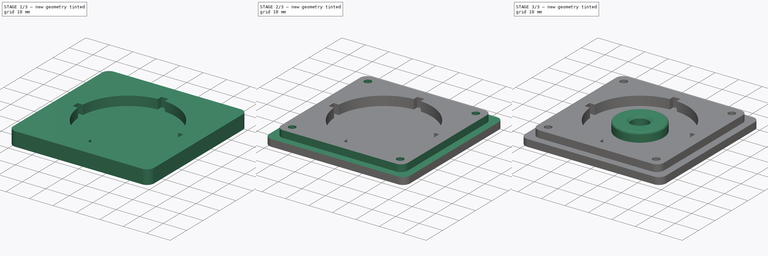
[diagram: build sequence overview — one tinted view per stage of 3, left to right]
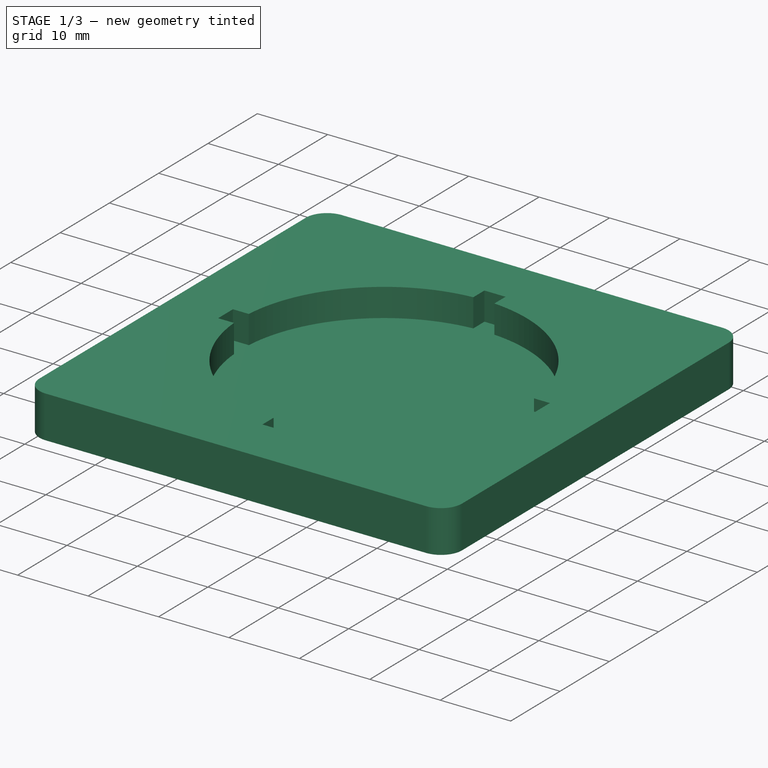
[diagram: stage 1 of 3 — iso view after this stage's code; geometry added in this stage tinted green]
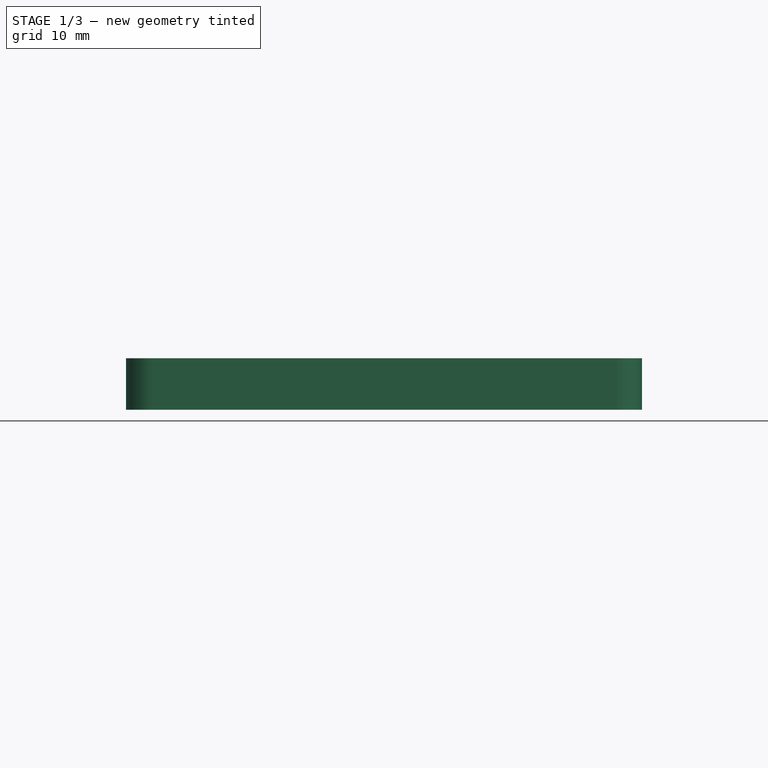
[diagram: stage 1 of 3 — front view after this stage's code; geometry added in this stage tinted green]
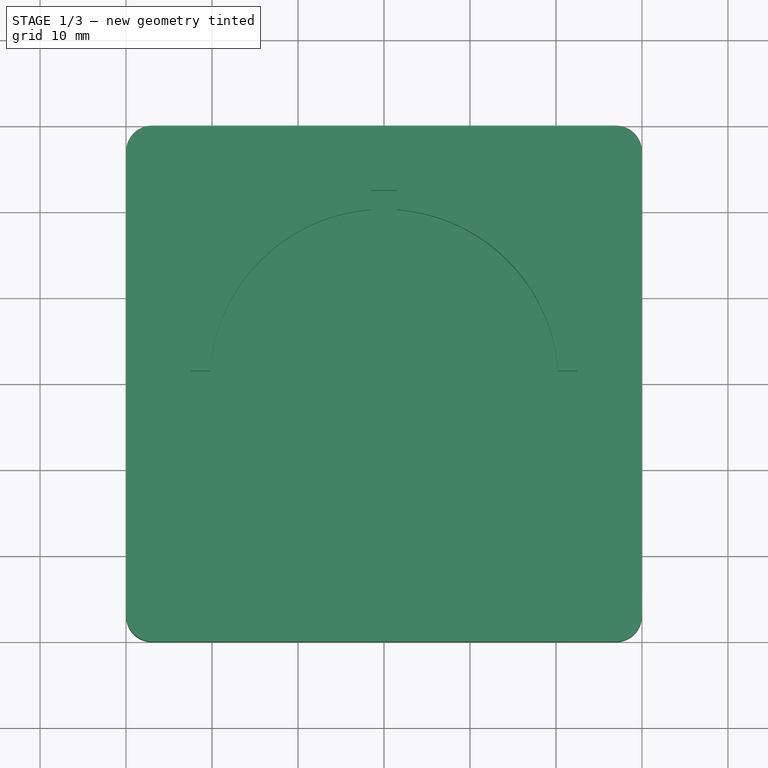
[diagram: stage 1 of 3 — top view after this stage's code; geometry added in this stage tinted green]
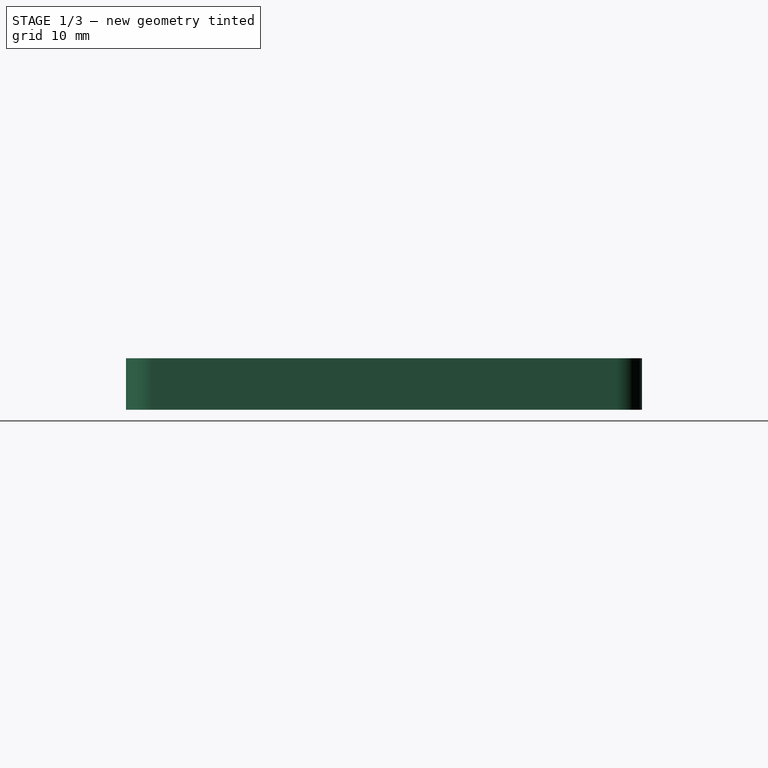
[diagram: stage 1 of 3 — right view after this stage's code; geometry added in this stage tinted green]
FCSTD DOCUMENT  (FreeCAD 1.0R39109 (Git))
Label: feet base
License: All rights reserved
objects: Sketcher::SketchObject×6, PartDesign::Pocket×4, PartDesign::Pad×2, PartDesign::Fillet×1, PartDesign::Chamfer×1, PartDesign::Body×1
note: 37 computed .brp shape members not serialized (recipe doc carries the construction recipe); baked Part::Feature solids carry a one-line shape summary decoded from their .brp

FEATURE [Sketcher::SketchObject] Sketch
  ArcFitTolerance = 1e-06
  AttachmentSupport = -> [XY_Plane]
  FullyConstrained = true
  MakeInternals = false
  MapMode = 5
  sketch-geometry (10):
    g0: LineSegment StartX=-30 StartY=27 StartZ=0 EndX=-30 EndY=-27 EndZ=0
    g1: LineSegment StartX=-27 StartY=-30 StartZ=0 EndX=27 EndY=-30 EndZ=0
    g2: LineSegment StartX=30 StartY=-27 StartZ=0 EndX=30 EndY=27 EndZ=0
    g3: LineSegment StartX=27 StartY=30 StartZ=0 EndX=-27 EndY=30 EndZ=0
    g4: ArcOfCircle CenterX=-27 CenterY=27 CenterZ=0 NormalX=0 NormalY=0 NormalZ=1 AngleXU=0 Radius=3 StartAngle=1.5708 EndAngle=3.14159
    g5: ArcOfCircle CenterX=-27 CenterY=-27 CenterZ=0 NormalX=0 NormalY=0 NormalZ=1 AngleXU=0 Radius=3 StartAngle=3.14159 EndAngle=4.71239
    g6: ArcOfCircle CenterX=27 CenterY=-27 CenterZ=0 NormalX=0 NormalY=0 NormalZ=1 AngleXU=0 Radius=3 StartAngle=4.71239 EndAngle=6.28319
    g7: ArcOfCircle CenterX=27 CenterY=27 CenterZ=0 NormalX=0 NormalY=0 NormalZ=1 AngleXU=0 Radius=3 StartAngle=3e-16 EndAngle=1.5708
    g8: GeomPoint [constr] X=-30 Y=30 Z=0
    g9: GeomPoint [constr] X=30 Y=-30 Z=0
  constraints (22):
    c: Tangent(g0,g4) = -1.5708
    c: Tangent(g0,g5) = -1.5708
    c: Tangent(g1,g5) = -1.5708
    c: Tangent(g1,g6) = -1.5708
    c: Tangent(g2,g6) = -1.5708
    c: Tangent(g2,g7) = -1.5708
    c: Tangent(g3,g7) = -1.5708
    c: Tangent(g3,g4) = -1.5708
    c: Vertical(g0)
    c: Vertical(g2)
    c: Horizontal(g1)
    c: Horizontal(g3)
    c: Equal(g5,g6)
    c: PointOnObject(g8,g0)
    c: PointOnObject(g8,g3)
    c: PointOnObject(g9,g1)
    c: PointOnObject(g9,g2)
    c: Distance(g0,g2) = 60
    c: Distance(g1,g3) = 60
    c: Radius(g5) = 3
    c: Symmetric(g4,g7,g-2)
    c: Symmetric(g5,g4,g-1)
FEATURE [PartDesign::Pad] Pad
  Direction = (0,0,1)
  Length = 6
  Length2 = 10
  Profile = -> Sketch
  ReferenceAxis = -> Sketch [N_Axis]
  Refine = true
  Suppressed = false
  Type = 0
FEATURE [Sketcher::SketchObject] Sketch001
  ArcFitTolerance = 1e-06
  AttachmentSupport = -> [Pad]
  FullyConstrained = true
  MakeInternals = false
  MapMode = 5
  Placement = pos=(0,0,6) rot=(0,0,1;0rad)
  sketch-geometry (1):
    g0: Circle CenterX=0 CenterY=0 CenterZ=0 NormalX=0 NormalY=0 NormalZ=1 AngleXU=0 Radius=20.3
  constraints (2):
    c: Coincident(g0,g-1)
    c: Radius(g0) = 20.3
FEATURE [PartDesign::Pocket] Pocket
  BaseFeature = -> Pad
  Direction = (0,0,-1)
  Length = 4
  Length2 = 5
  Profile = -> Sketch001
  ReferenceAxis = -> Sketch001 [N_Axis]
  Refine = true
  Suppressed = false
  Type = 0
FEATURE [Sketcher::SketchObject] Sketch002
  ArcFitTolerance = 1e-06
  AttachmentSupport = -> [Pocket]
  FullyConstrained = true
  MakeInternals = false
  MapMode = 5
  Placement = pos=(0,0,6) rot=(0,0,1;0rad)
  sketch-geometry (24):
    g0: LineSegment [constr] StartX=-22.5 StartY=22.5 StartZ=0 EndX=-22.5 EndY=1.5 EndZ=0
    g1: LineSegment StartX=-22.5 StartY=1.5 StartZ=0 EndX=-1.5 EndY=1.5 EndZ=0
    g2: LineSegment StartX=-1.5 StartY=1.5 StartZ=0 EndX=-1.5 EndY=22.5 EndZ=0
    g3: LineSegment [constr] StartX=-1.5 StartY=22.5 StartZ=0 EndX=-22.5 EndY=22.5 EndZ=0
    g4: LineSegment StartX=1.5 StartY=22.5 StartZ=0 EndX=1.5 EndY=1.5 EndZ=0
    g5: LineSegment StartX=1.5 StartY=1.5 StartZ=0 EndX=22.5 EndY=1.5 EndZ=0
    g6: LineSegment [constr] StartX=22.5 StartY=1.5 StartZ=0 EndX=22.5 EndY=22.5 EndZ=0
    g7: LineSegment [constr] StartX=22.5 StartY=22.5 StartZ=0 EndX=1.5 EndY=22.5 EndZ=0
    g8: LineSegment [constr] StartX=-22.5 StartY=-1.5 StartZ=0 EndX=-22.5 EndY=-22.5 EndZ=0
    g9: LineSegment [constr] StartX=-22.5 StartY=-22.5 StartZ=0 EndX=-1.5 EndY=-22.5 EndZ=0
    g10: LineSegment StartX=-1.5 StartY=-22.5 StartZ=0 EndX=-1.5 EndY=-1.5 EndZ=0
    g11: LineSegment StartX=-1.5 StartY=-1.5 StartZ=0 EndX=-22.5 EndY=-1.5 EndZ=0
    g12: LineSegment StartX=1.5 StartY=-1.5 StartZ=0 EndX=1.5 EndY=-22.5 EndZ=0
    g13: LineSegment [constr] StartX=1.5 StartY=-22.5 StartZ=0 EndX=22.5 EndY=-22.5 EndZ=0
    g14: LineSegment [constr] StartX=22.5 StartY=-22.5 StartZ=0 EndX=22.5 EndY=-1.5 EndZ=0
    g15: LineSegment StartX=22.5 StartY=-1.5 StartZ=0 EndX=1.5 EndY=-1.5 EndZ=0
    g16: LineSegment [constr] StartX=-1.5 StartY=1.5 StartZ=0 EndX=-1.5 EndY=-1.5 EndZ=0
    g17: LineSegment [constr] StartX=-1.5 StartY=-1.5 StartZ=0 EndX=1.5 EndY=-1.5 EndZ=0
    g18: LineSegment [constr] StartX=1.5 StartY=-1.5 StartZ=0 EndX=1.5 EndY=1.5 EndZ=0
    g19: LineSegment [constr] StartX=1.5 StartY=1.5 StartZ=0 EndX=-1.5 EndY=1.5 EndZ=0
    g20: LineSegment StartX=-22.5 StartY=1.5 StartZ=0 EndX=-22.5 EndY=-1.5 EndZ=0
    g21: LineSegment StartX=-1.5 StartY=22.5 StartZ=0 EndX=1.5 EndY=22.5 EndZ=0
    g22: LineSegment StartX=22.5 StartY=1.5 StartZ=0 EndX=22.5 EndY=-1.5 EndZ=0
    g23: LineSegment StartX=-1.5 StartY=-22.5 StartZ=0 EndX=1.5 EndY=-22.5 EndZ=0
  constraints (60):
    c: Coincident(g0,g1)
    c: Coincident(g1,g2)
    c: Coincident(g2,g3)
    c: Coincident(g3,g0)
    c: Vertical(g0)
    c: Vertical(g2)
    c: Horizontal(g1)
    c: Horizontal(g3)
    c: Coincident(g4,g5)
    c: Coincident(g5,g6)
    c: Coincident(g6,g7)
    c: Coincident(g7,g4)
    c: Vertical(g4)
    c: Vertical(g6)
    c: Horizontal(g5)
    c: Horizontal(g7)
    c: Coincident(g8,g9)
    c: Coincident(g9,g10)
    c: Coincident(g10,g11)
    c: Coincident(g11,g8)
    c: Vertical(g8)
    c: Vertical(g10)
    c: Horizontal(g9)
    c: Horizontal(g11)
    c: Coincident(g12,g13)
    c: Coincident(g13,g14)
    c: Coincident(g14,g15)
    c: Coincident(g15,g12)
    c: Vertical(g12)
    c: Vertical(g14)
    c: Horizontal(g13)
    c: Horizontal(g15)
    c: Coincident(g16,g17)
    c: Coincident(g17,g18)
    c: Coincident(g18,g19)
    c: Coincident(g19,g16)
    c: Vertical(g18)
    c: Horizontal(g19)
    c: Coincident(g1,g16)
    c: Coincident(g4,g18)
    c: Coincident(g10,g16)
    c: Coincident(g12,g17)
    c: Coincident(g20,g0)
    c: Coincident(g21,g2)
    c: Coincident(g21,g4)
    c: Coincident(g22,g5)
    c: Coincident(g22,g14)
    c: Vertical(g22)
    c: Coincident(g23,g9)
    c: Coincident(g23,g12)
    c: Horizontal(g23)
    c: Coincident(g8,g20)
    c: Symmetric(g0,g8,g-1)
    c: Symmetric(g0,g6,g-2)
    c: Symmetric(g1,g10,g-1)
    c: Symmetric(g10,g12,g-2)
    c: Equal(g20,g23)
    c: DistanceX(g8,g13) = 45
    c: Equal(g9,g8)
    c: DistanceY(g22,g22) = 3
FEATURE [PartDesign::Pocket] Pocket001
  BaseFeature = -> Pocket
  Direction = (0,0,-1)
  Length = 4
  Length2 = 5
  Profile = -> Sketch002
  ReferenceAxis = -> Sketch002 [N_Axis]
  Refine = true
  Suppressed = false
  Type = 0
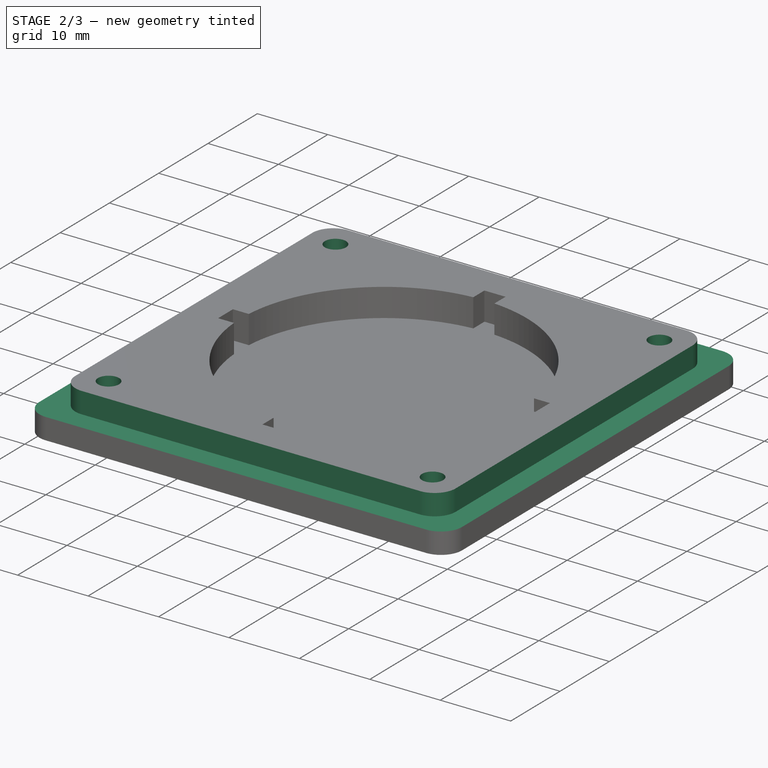
[diagram: stage 2 of 3 — iso view after this stage's code; geometry added in this stage tinted green]
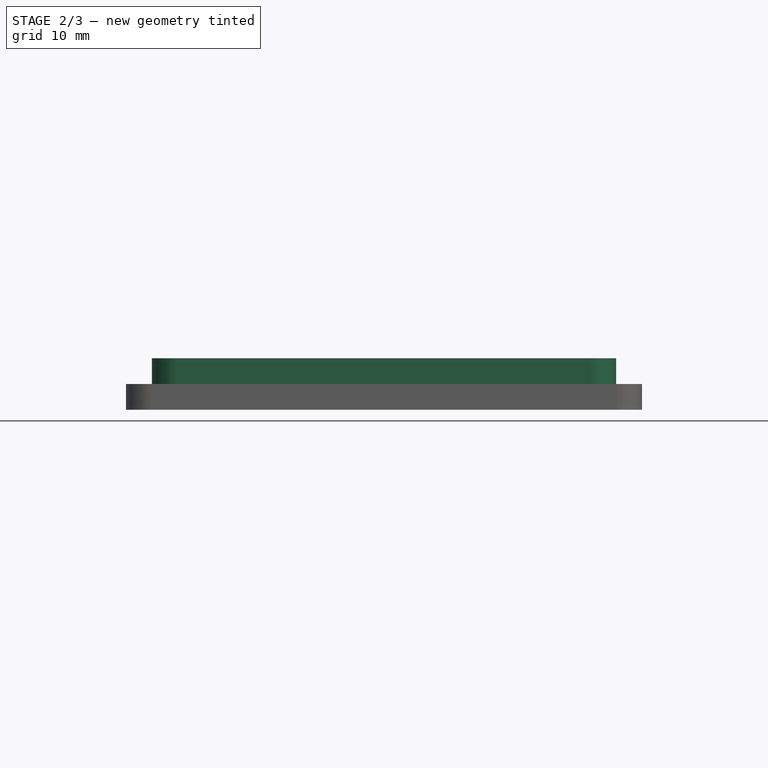
[diagram: stage 2 of 3 — front view after this stage's code; geometry added in this stage tinted green]
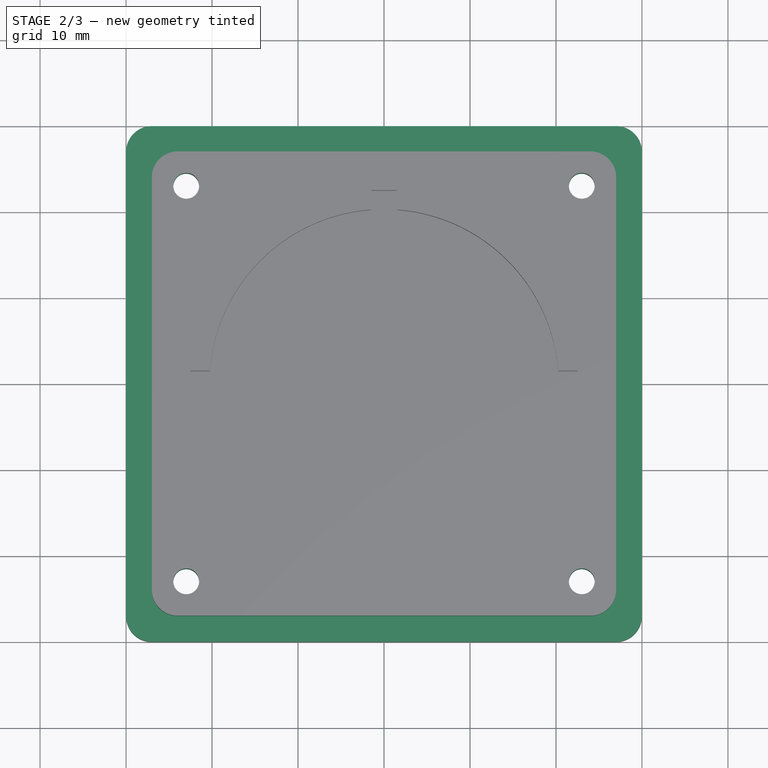
[diagram: stage 2 of 3 — top view after this stage's code; geometry added in this stage tinted green]
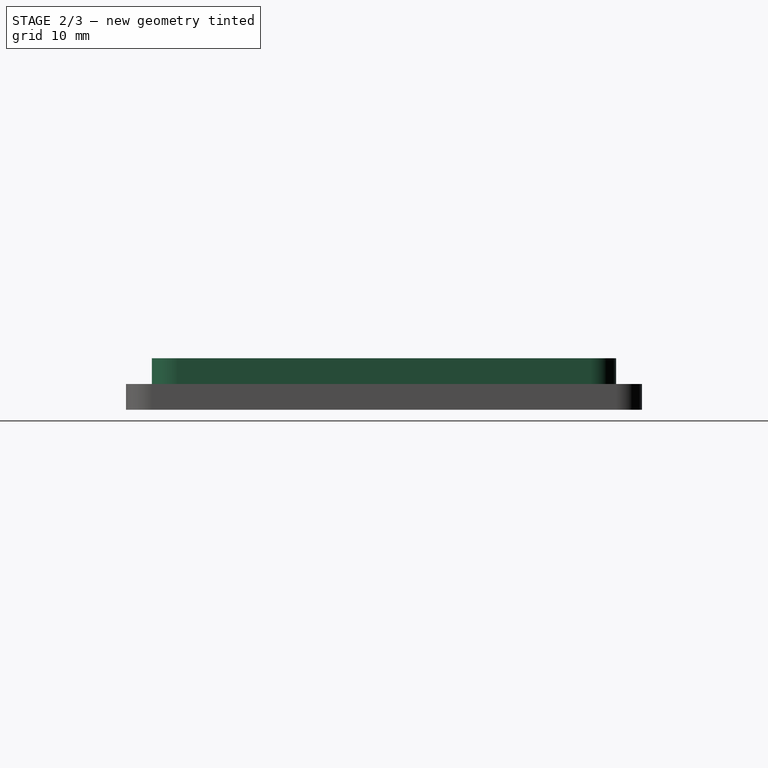
[diagram: stage 2 of 3 — right view after this stage's code; geometry added in this stage tinted green]
FEATURE [Sketcher::SketchObject] Sketch003
  ArcFitTolerance = 1e-06
  AttachmentSupport = -> [Pocket001]
  ExternalGeometry = -> [Pocket001]
  FullyConstrained = true
  MakeInternals = false
  MapMode = 5
  Placement = pos=(0,0,6) rot=(0,0,1;0rad)
  sketch-geometry (20):
    g0: LineSegment StartX=-27 StartY=24 StartZ=0 EndX=-27 EndY=-24 EndZ=0
    g1: LineSegment StartX=-24 StartY=-27 StartZ=0 EndX=24 EndY=-27 EndZ=0
    g2: LineSegment StartX=27 StartY=-24 StartZ=0 EndX=27 EndY=24 EndZ=0
    g3: LineSegment StartX=24 StartY=27 StartZ=0 EndX=-24 EndY=27 EndZ=0
    g4: ArcOfCircle CenterX=-24 CenterY=24 CenterZ=0 NormalX=0 NormalY=0 NormalZ=1 AngleXU=0 Radius=3 StartAngle=1.5708 EndAngle=3.14159
    g5: ArcOfCircle CenterX=-24 CenterY=-24 CenterZ=0 NormalX=0 NormalY=0 NormalZ=1 AngleXU=0 Radius=3 StartAngle=3.14159 EndAngle=4.71239
    g6: ArcOfCircle CenterX=24 CenterY=-24 CenterZ=0 NormalX=0 NormalY=0 NormalZ=1 AngleXU=0 Radius=3 StartAngle=4.71239 EndAngle=6.28319
    g7: ArcOfCircle CenterX=24 CenterY=24 CenterZ=0 NormalX=0 NormalY=0 NormalZ=1 AngleXU=0 Radius=3 StartAngle=0 EndAngle=1.5708
    g8: GeomPoint [constr] X=-27 Y=27 Z=0
    g9: GeomPoint [constr] X=27 Y=-27 Z=0
    g10: LineSegment StartX=-30 StartY=27 StartZ=0 EndX=-30 EndY=-27 EndZ=0
    g11: LineSegment StartX=-27 StartY=-30 StartZ=0 EndX=27 EndY=-30 EndZ=0
    g12: LineSegment StartX=30 StartY=-27 StartZ=0 EndX=30 EndY=27 EndZ=0
    g13: LineSegment StartX=27 StartY=30 StartZ=0 EndX=-27 EndY=30 EndZ=0
    g14: ArcOfCircle CenterX=-27 CenterY=27 CenterZ=0 NormalX=0 NormalY=0 NormalZ=1 AngleXU=0 Radius=3 StartAngle=1.5708 EndAngle=3.14159
    g15: ArcOfCircle CenterX=-27 CenterY=-27 CenterZ=0 NormalX=0 NormalY=0 NormalZ=1 AngleXU=0 Radius=3 StartAngle=3.14159 EndAngle=4.71239
    g16: ArcOfCircle CenterX=27 CenterY=-27 CenterZ=0 NormalX=0 NormalY=0 NormalZ=1 AngleXU=0 Radius=3 StartAngle=4.71239 EndAngle=6.28319
    g17: ArcOfCircle CenterX=27 CenterY=27 CenterZ=0 NormalX=0 NormalY=0 NormalZ=1 AngleXU=0 Radius=3 StartAngle=0 EndAngle=1.5708
    g18: GeomPoint [constr] X=-30 Y=30 Z=0
    g19: GeomPoint [constr] X=30 Y=-30 Z=0
  constraints (43):
    c: Tangent(g0,g4) = -1.5708
    c: Tangent(g0,g5) = -1.5708
    c: Tangent(g1,g5) = -1.5708
    c: Tangent(g1,g6) = -1.5708
    c: Tangent(g2,g6) = -1.5708
    c: Tangent(g2,g7) = -1.5708
    c: Tangent(g3,g7) = -1.5708
    c: Tangent(g3,g4) = -1.5708
    c: Vertical(g2)
    c: Horizontal(g1)
    c: Equal(g4,g5)
    c: Equal(g5,g6)
    c: Equal(g6,g7)
    c: PointOnObject(g8,g0)
    c: PointOnObject(g8,g3)
    c: PointOnObject(g9,g1)
    c: PointOnObject(g9,g2)
    c: Tangent(g10,g14) = -1.5708
    c: Tangent(g10,g15) = -1.5708
    c: Tangent(g11,g15) = -1.5708
    c: Tangent(g11,g16) = -1.5708
    c: Tangent(g12,g16) = -1.5708
    c: Tangent(g12,g17) = -1.5708
    c: Tangent(g13,g17) = -1.5708
    c: Tangent(g13,g14) = -1.5708
    c: Vertical(g10)
    c: Vertical(g12)
    c: Horizontal(g11)
    c: Horizontal(g13)
    c: Equal(g15,g16)
    c: Equal(g16,g17)
    c: PointOnObject(g18,g10)
    c: PointOnObject(g18,g13)
    c: PointOnObject(g19,g11)
    c: PointOnObject(g19,g12)
    c: Coincident(g14,g-5)
    c: Coincident(g16,g-4)
    c: Coincident(g11,g-3)
    c: Symmetric(g0,g0,g-1)
    c: Symmetric(g3,g3,g-2)
    c: Radius(g5) = 3
    c: Equal(g1,g0)
    c: DistanceX(g10,g0) = 3
FEATURE [PartDesign::Pocket] Pocket002
  BaseFeature = -> Pocket001
  Direction = (0,0,-1)
  Length = 3
  Length2 = 5
  Profile = -> Sketch003
  ReferenceAxis = -> Sketch003 [N_Axis]
  Refine = true
  Suppressed = false
  Type = 0
FEATURE [Sketcher::SketchObject] Sketch004
  ArcFitTolerance = 1e-06
  AttachmentSupport = -> [Pocket002]
  FullyConstrained = true
  MakeInternals = false
  MapMode = 5
  Placement = pos=(0,0,6) rot=(0,0,1;0rad)
  sketch-geometry (8):
    g0: LineSegment [constr] StartX=-23 StartY=23 StartZ=0 EndX=-23 EndY=-23 EndZ=0
    g1: LineSegment [constr] StartX=-23 StartY=-23 StartZ=0 EndX=23 EndY=-23 EndZ=0
    g2: LineSegment [constr] StartX=23 StartY=-23 StartZ=0 EndX=23 EndY=23 EndZ=0
    g3: LineSegment [constr] StartX=23 StartY=23 StartZ=0 EndX=-23 EndY=23 EndZ=0
    g4: Circle CenterX=-23 CenterY=23 CenterZ=0 NormalX=0 NormalY=0 NormalZ=1 AngleXU=0 Radius=1.5
    g5: Circle CenterX=-23 CenterY=-23 CenterZ=0 NormalX=0 NormalY=0 NormalZ=1 AngleXU=0 Radius=1.5
    g6: Circle CenterX=23 CenterY=-23 CenterZ=0 NormalX=0 NormalY=0 NormalZ=1 AngleXU=0 Radius=1.5
    g7: Circle CenterX=23 CenterY=23 CenterZ=0 NormalX=0 NormalY=0 NormalZ=1 AngleXU=0 Radius=1.5
  constraints (18):
    c: Coincident(g0,g1)
    c: Coincident(g1,g2)
    c: Coincident(g2,g3)
    c: Coincident(g3,g0)
    c: Vertical(g2)
    c: Horizontal(g1)
    c: Coincident(g4,g0)
    c: Coincident(g5,g0)
    c: Coincident(g6,g1)
    c: Coincident(g7,g2)
    c: Equal(g7,g4)
    c: Equal(g4,g5)
    c: Equal(g5,g6)
    c: Radius(g5) = 1.5
    c: Symmetric(g0,g2,g-2)
    c: DistanceX(g3,g3) = 46
    c: Equal(g0,g3)
    c: Symmetric(g0,g0,g-1)
FEATURE [PartDesign::Pocket] Pocket003
  BaseFeature = -> Pocket002
  Direction = (0,0,-1)
  Length = 5
  Length2 = 5
  Profile = -> Sketch004
  ReferenceAxis = -> Sketch004 [N_Axis]
  Refine = true
  Suppressed = false
  Type = 1
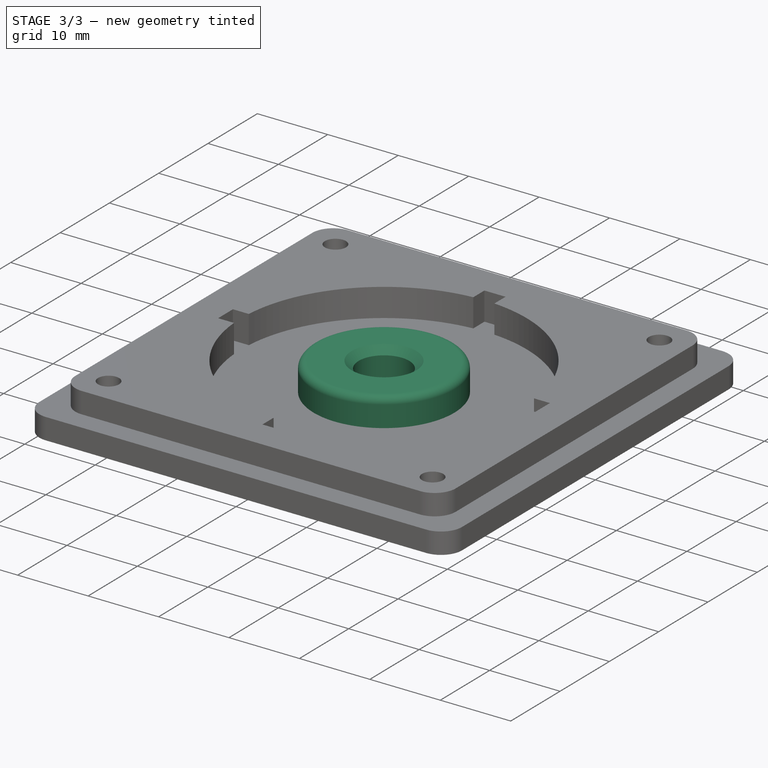
[diagram: stage 3 of 3 — iso view after this stage's code; geometry added in this stage tinted green]
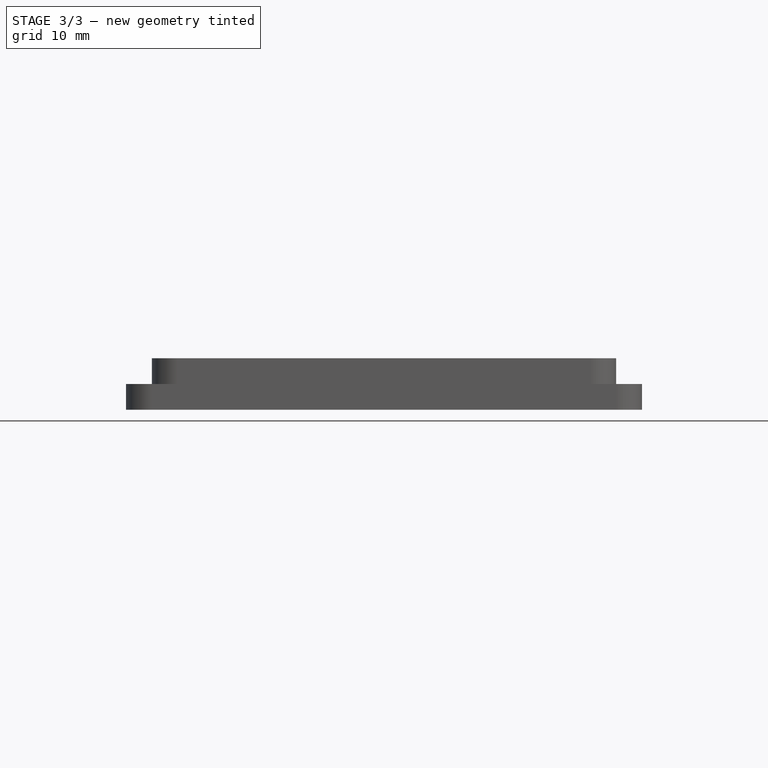
[diagram: stage 3 of 3 — front view after this stage's code; geometry added in this stage tinted green]
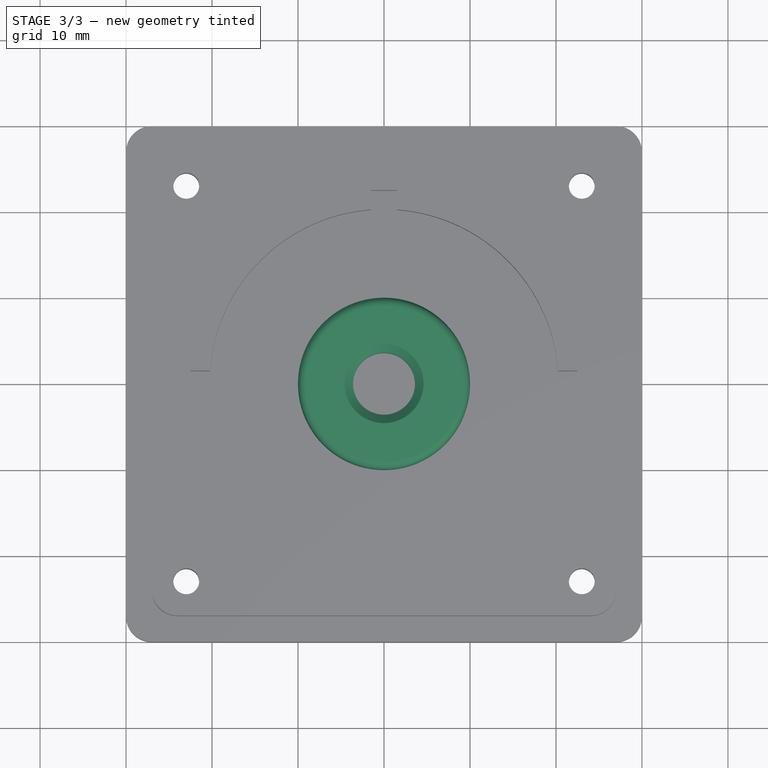
[diagram: stage 3 of 3 — top view after this stage's code; geometry added in this stage tinted green]
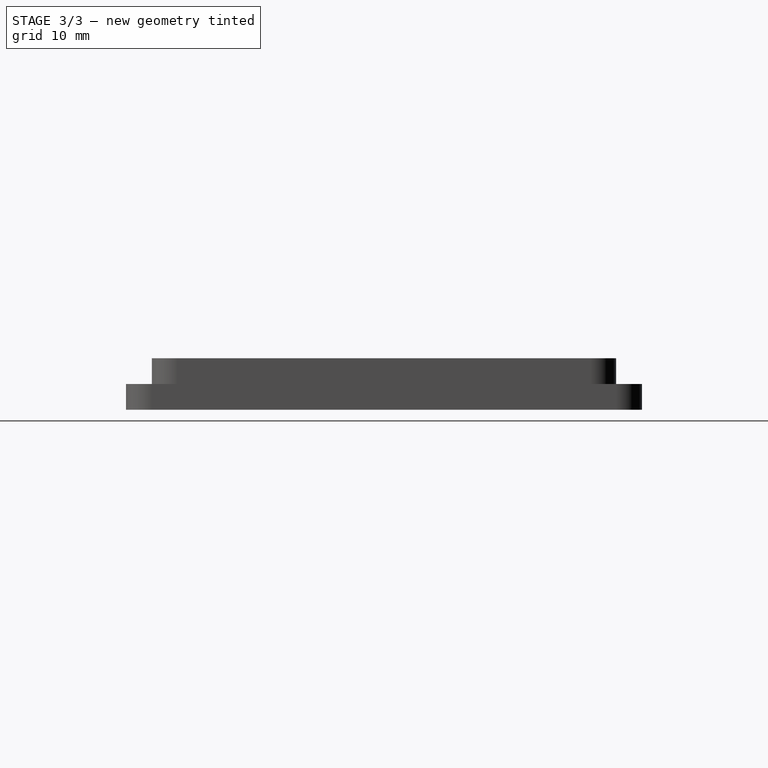
[diagram: stage 3 of 3 — right view after this stage's code; geometry added in this stage tinted green]
FEATURE [Sketcher::SketchObject] Sketch005
  ArcFitTolerance = 1e-06
  AttachmentSupport = -> [Pocket003]
  FullyConstrained = true
  MakeInternals = false
  MapMode = 5
  Placement = pos=(0,0,2) rot=(0,0,1;0rad)
  sketch-geometry (2):
    g0: Circle CenterX=0 CenterY=0 CenterZ=0 NormalX=0 NormalY=0 NormalZ=1 AngleXU=0 Radius=10
    g1: Circle CenterX=0 CenterY=0 CenterZ=0 NormalX=0 NormalY=0 NormalZ=1 AngleXU=0 Radius=3.6
  constraints (4):
    c: Coincident(g0,g-1)
    c: Coincident(g1,g0)
    c: Radius(g0) = 10
    c: Radius(g1) = 3.6
FEATURE [PartDesign::Pad] Pad001
  BaseFeature = -> Pocket003
  Direction = (0,0,1)
  Length = 4
  Length2 = 10
  Profile = -> Sketch005
  ReferenceAxis = -> Sketch005 [N_Axis]
  Refine = true
  Suppressed = false
  Type = 0
FEATURE [PartDesign::Fillet] Fillet
  Base = -> Pad001 [Edge111]
  BaseFeature = -> Pad001
  Radius = 1
  Refine = true
  SupportTransform = false
  Suppressed = false
  UseAllEdges = false
FEATURE [PartDesign::Chamfer] Chamfer
  Angle = 45
  Base = -> Fillet [Edge22]
  BaseFeature = -> Fillet
  ChamferType = 0
  FlipDirection = false
  Refine = true
  Size = 1
  Size2 = 1
  SupportTransform = false
  Suppressed = false
  UseAllEdges = false
FEATURE [PartDesign::Body] Body
  AllowCompound = false
  Group = -> [Sketch,Pad,Sketch001,Pocket,Sketch002,Pocket001,Sketch003,Pocket002,Sketch004,Pocket003,Sketch005,Pad001,Fillet,Chamfer]
  Origin = -> Origin
  Tip = -> Chamfer
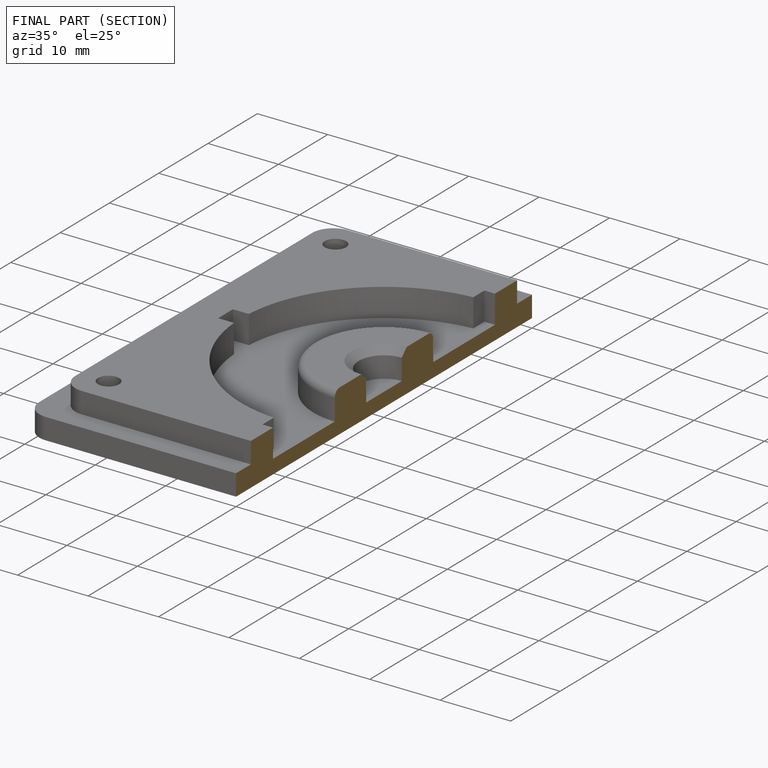
[diagram: finished part — half-section view (interior)]
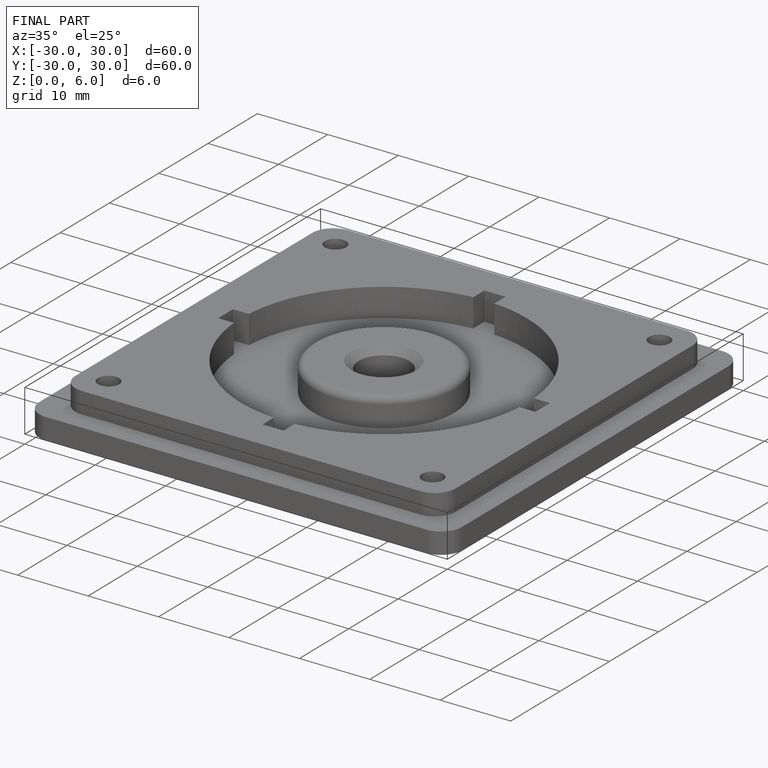
[diagram: finished part — iso view with bounding-box wireframe]
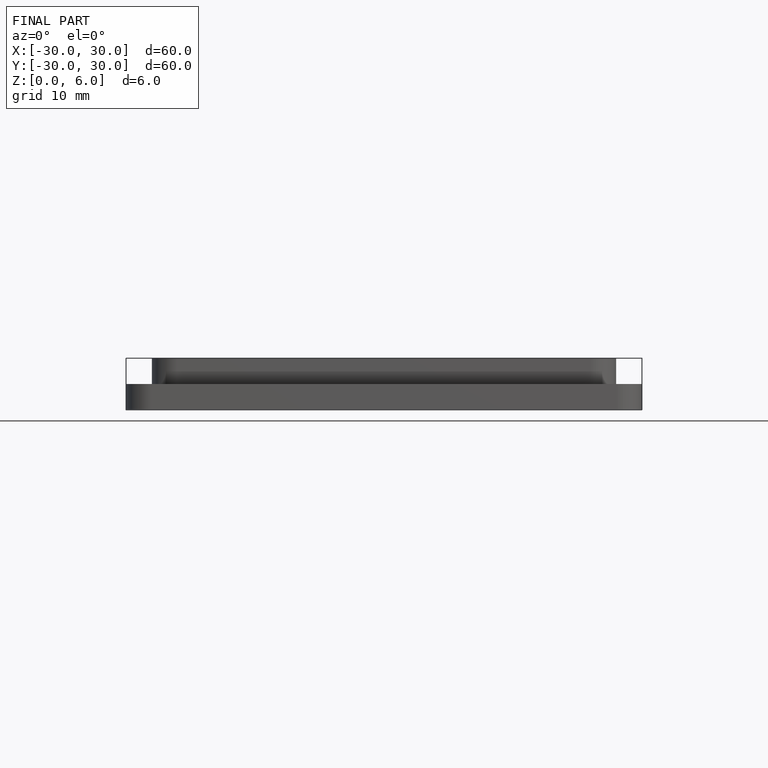
[diagram: finished part — front view with bounding-box wireframe]
